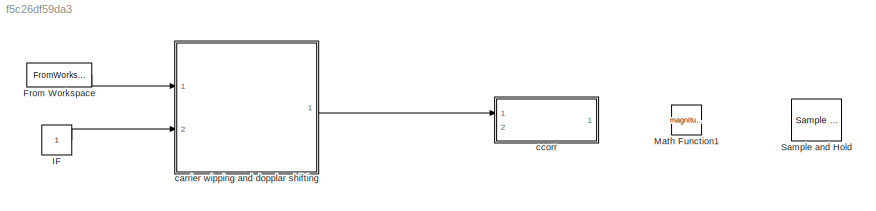
MODEL slx_f5c26df59da3
KIND model
CONFIG AbsTol = auto
CONFIG FixedStep = auto
CONFIG MaxStep = auto
CONFIG MinStep = auto
CONFIG RelTol = 1e-3
CONFIG SampleTimeConstraint = Unconstrained
CONFIG Solver = VariableStepAuto
CONFIG SolverMode = Auto
CONFIG SolverName = VariableStepAuto
CONFIG StartTime = 0.0
CONFIG StopTime = 1
BLOCK [FromWorkspace] From Workspace
  SampleTime = 0
  VariableName = simin
  ZeroCross = on
BLOCK [Constant] IF 
BLOCK [Math] Math Function1
  Operator = magnitude^2
  Ports = [1, 1]
BLOCK [Reference] Sample and Hold  REF=dspsigops/Sample
and Hold
  Ports = [1, 1, 0, 1]
  SourceBlock = dspsigops/Sample\nand Hold
  SourceType = Sample and Hold
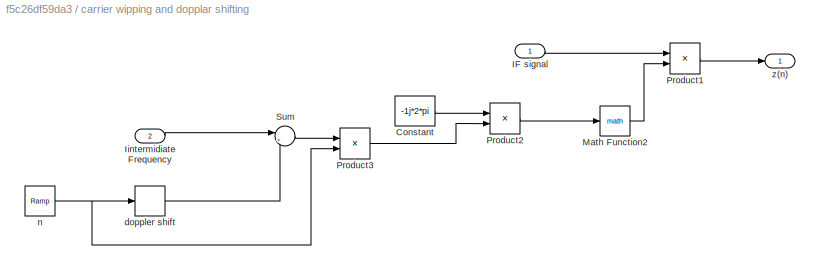
BLOCK [SubSystem] carrier wipping and dopplar shifting
  Ports = [2, 1]
  RequestExecContextInheritance = off
  Variant = off
BLOCK [Constant] carrier wipping and dopplar shifting/Constant
  Value = -1j*2*pi
BLOCK [Inport] carrier wipping and dopplar shifting/IF signal
  IconDisplay = Port number
BLOCK [Inport] carrier wipping and dopplar shifting/Iintermidiate Frequency
  IconDisplay = Port number
  Port = 2
BLOCK [Math] carrier wipping and dopplar shifting/Math Function2
  OutputSignalType = complex
  Ports = [1, 1]
BLOCK [Product] carrier wipping and dopplar shifting/Product1
  InputSameDT = off
  OutDataTypeStr = Inherit: Inherit via internal rule
  Ports = [2, 1]
  RndMeth = Floor
  SaturateOnIntegerOverflow = off
BLOCK [Product] carrier wipping and dopplar shifting/Product2
  InputSameDT = off
  OutDataTypeStr = Inherit: Inherit via internal rule
  Ports = [2, 1]
  RndMeth = Floor
  SaturateOnIntegerOverflow = off
BLOCK [Product] carrier wipping and dopplar shifting/Product3
  InputSameDT = off
  OutDataTypeStr = Inherit: Inherit via internal rule
  Ports = [2, 1]
  RndMeth = Floor
  SaturateOnIntegerOverflow = off
BLOCK [Sum] carrier wipping and dopplar shifting/Sum
  IconShape = round
  InputSameDT = off
  Inputs = |++
  OutDataTypeStr = Inherit: Inherit via internal rule
  Ports = [2, 1]
  SaturateOnIntegerOverflow = off
BLOCK [Quantizer] carrier wipping and dopplar shifting/doppler shift
BLOCK [Reference] carrier wipping and dopplar shifting/n  REF=simulink/Sources/Ramp
  Ports = [0, 1]
  SourceBlock = simulink/Sources/Ramp
  SourceType = Ramp
BLOCK [Outport] carrier wipping and dopplar shifting/z(n)
  IconDisplay = Port number
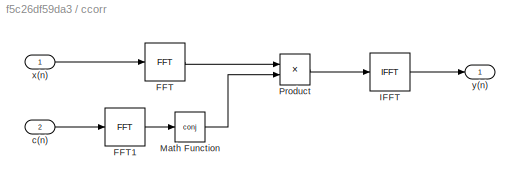
BLOCK [SubSystem] ccorr
  Ports = [2, 1]
  RequestExecContextInheritance = off
  Variant = off
BLOCK [Reference] ccorr/FFT  REF=dspxfrm3/FFT
  Ports = [1, 1]
  SourceBlock = dspxfrm3/FFT
  SourceType = FFT
BLOCK [Reference] ccorr/FFT1  REF=dspxfrm3/FFT
  Ports = [1, 1]
  SourceBlock = dspxfrm3/FFT
  SourceType = FFT
BLOCK [Reference] ccorr/IFFT  REF=dspxfrm3/IFFT
  Ports = [1, 1]
  SourceBlock = dspxfrm3/IFFT
  SourceType = IFFT
BLOCK [Math] ccorr/Math Function
  Operator = conj
  Ports = [1, 1]
BLOCK [Product] ccorr/Product
  InputSameDT = off
  OutDataTypeStr = Inherit: Inherit via internal rule
  Ports = [2, 1]
  RndMeth = Floor
  SaturateOnIntegerOverflow = off
BLOCK [Inport] ccorr/c(n)
  IconDisplay = Port number
  Port = 2
BLOCK [Inport] ccorr/x(n)
  IconDisplay = Port number
BLOCK [Outport] ccorr/y(n)
  IconDisplay = Port number
LINE From Workspace:1 -> carrier wipping and dopplar shifting:1
LINE IF :1 -> carrier wipping and dopplar shifting:2
LINE carrier wipping and dopplar shifting/Constant:1 -> carrier wipping and dopplar shifting/Product2:1
LINE carrier wipping and dopplar shifting/IF signal:1 -> carrier wipping and dopplar shifting/Product1:1
LINE carrier wipping and dopplar shifting/Iintermidiate Frequency:1 -> carrier wipping and dopplar shifting/Sum:1
LINE carrier wipping and dopplar shifting/Math Function2:1 -> carrier wipping and dopplar shifting/Product1:2
LINE carrier wipping and dopplar shifting/Product1:1 -> carrier wipping and dopplar shifting/z(n):1
LINE carrier wipping and dopplar shifting/Product2:1 -> carrier wipping and dopplar shifting/Math Function2:1
LINE carrier wipping and dopplar shifting/Product3:1 -> carrier wipping and dopplar shifting/Product2:2
LINE carrier wipping and dopplar shifting/Sum:1 -> carrier wipping and dopplar shifting/Product3:1
LINE carrier wipping and dopplar shifting/doppler shift:1 -> carrier wipping and dopplar shifting/Sum:2
NET carrier wipping and dopplar shifting/n:1 -> carrier wipping and dopplar shifting/Product3:2, carrier wipping and dopplar shifting/doppler shift:1
LINE carrier wipping and dopplar shifting:1 -> ccorr:1
LINE ccorr/FFT1:1 -> ccorr/Math Function:1
LINE ccorr/FFT:1 -> ccorr/Product:1
LINE ccorr/IFFT:1 -> ccorr/y(n):1
LINE ccorr/Math Function:1 -> ccorr/Product:2
LINE ccorr/Product:1 -> ccorr/IFFT:1
LINE ccorr/c(n):1 -> ccorr/FFT1:1
LINE ccorr/x(n):1 -> ccorr/FFT:1
note: NET lines group one-source signal fan-out (src -> all destinations, sorted); 1:1 wires keep LINE
